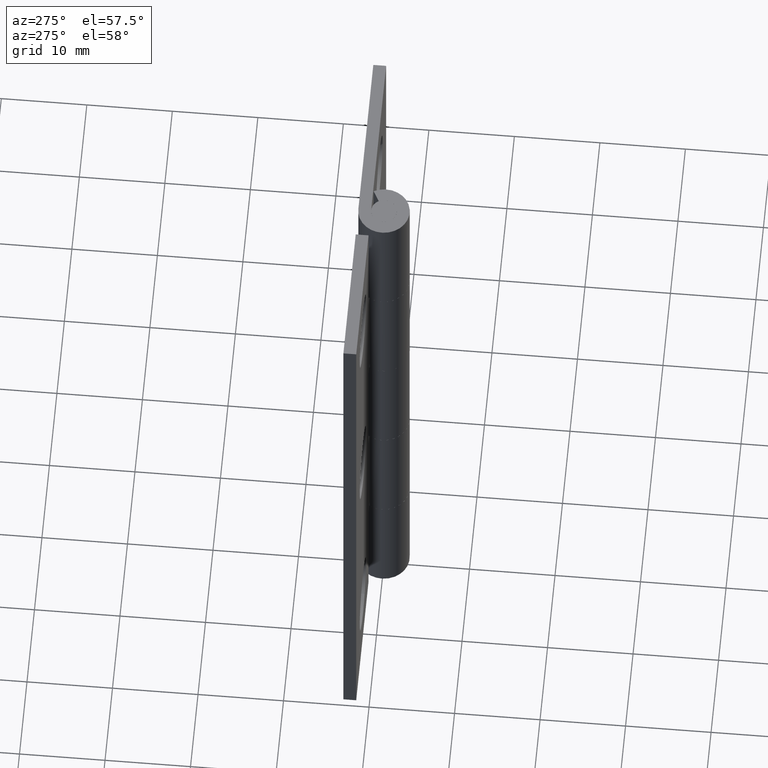
[diagram: clean part render]
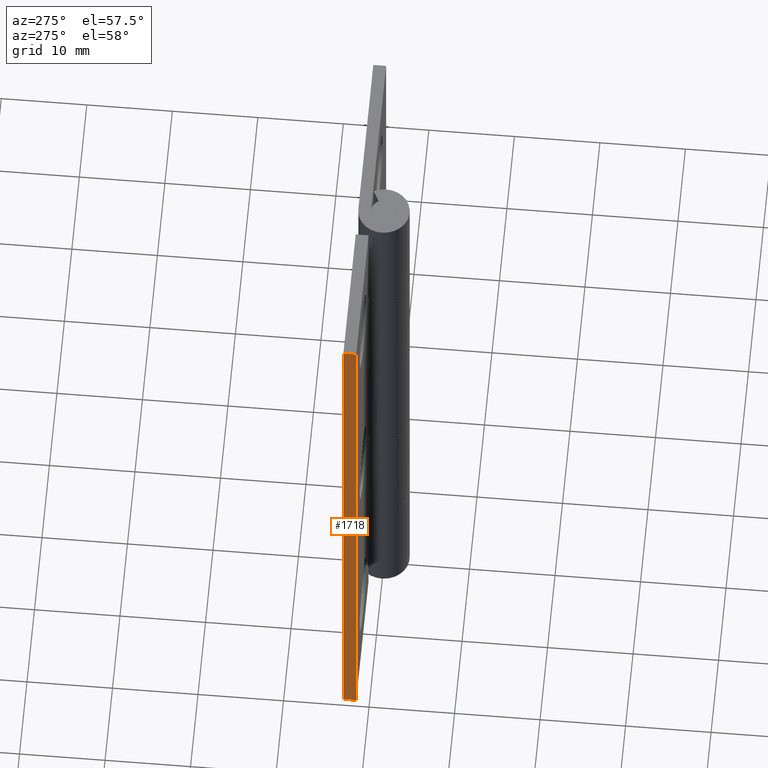
[diagram: same view with one face highlighted and labeled with its STEP entity id]
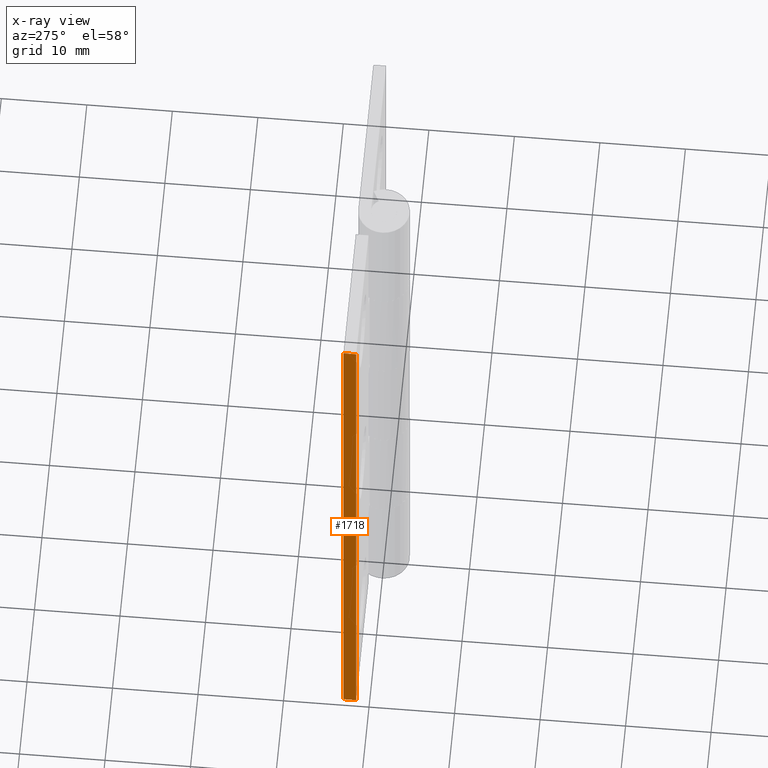
[diagram: x-ray of the same camera — body ghosted, the highlighted face saturated]
A machine part, auxiliary view. The second image highlights one B-rep face of the part: STEP entity #1718.
The next image is the same camera in x-ray: the body ghosted, the highlighted face saturated — about 0% of this face is hidden behind the body in this view.
In plain terms, the highlighted face is a freeform B-spline surface patch.
Its self-contained STEP definition (entity closure, byte-faithful):
#1683=CARTESIAN_POINT('',(-20.0,1.425075002907291,-3.746249854635448));
#1684=CARTESIAN_POINT('',(-20.0,1.425075002907291,78.746251866292212));
#1685=CARTESIAN_POINT('',(-20.0,3.074925037325845,-3.746249854635448));
#1686=CARTESIAN_POINT('',(-20.0,3.074925037325845,78.746251866292212));
#1687=B_SPLINE_SURFACE_WITH_KNOTS('',1,1,((#1683,#1685),(#1684,#1686)),.UNSPECIFIED.,.F.,.F.,.U.,(2,2),(2,2),(0.0,82.492501720927663),(0.041708334948495,0.958291687403247),.UNSPECIFIED.);
#1688=CARTESIAN_POINT('',(-20.0,3.0,75.0));
#1689=VERTEX_POINT('',#1688);
#1690=CARTESIAN_POINT('',(-20.0,1.500000000000000,75.0));
#1691=VERTEX_POINT('',#1690);
#1692=CARTESIAN_POINT('',(-20.0,3.0,75.0));
#1693=CARTESIAN_POINT('',(-20.0,1.500000000000000,75.0));
#1694=QUASI_UNIFORM_CURVE('',1,(#1692,#1693),.UNSPECIFIED.,.F.,.U.);
#1695=EDGE_CURVE('',#1689,#1691,#1694,.T.);
#1696=ORIENTED_EDGE('',*,*,#1695,.F.);
#1697=CARTESIAN_POINT('',(-20.0,3.0,0.0));
#1698=VERTEX_POINT('',#1697);
#1699=CARTESIAN_POINT('',(-20.0,3.0,0.0));
#1700=CARTESIAN_POINT('',(-20.0,3.0,75.0));
#1701=QUASI_UNIFORM_CURVE('',1,(#1699,#1700),.UNSPECIFIED.,.F.,.U.);
#1702=EDGE_CURVE('',#1698,#1689,#1701,.T.);
#1703=ORIENTED_EDGE('',*,*,#1702,.F.);
#1704=CARTESIAN_POINT('',(-20.0,1.500000000000000,0.0));
#1705=VERTEX_POINT('',#1704);
#1706=CARTESIAN_POINT('',(-20.0,3.0,0.0));
#1707=CARTESIAN_POINT('',(-20.0,1.500000000000000,0.0));
#1708=QUASI_UNIFORM_CURVE('',1,(#1706,#1707),.UNSPECIFIED.,.F.,.U.);
#1709=EDGE_CURVE('',#1698,#1705,#1708,.T.);
#1710=ORIENTED_EDGE('',*,*,#1709,.T.);
#1711=CARTESIAN_POINT('',(-20.0,1.500000000000000,0.0));
#1712=CARTESIAN_POINT('',(-20.0,1.500000000000000,75.0));
#1713=QUASI_UNIFORM_CURVE('',1,(#1711,#1712),.UNSPECIFIED.,.F.,.U.);
#1714=EDGE_CURVE('',#1705,#1691,#1713,.T.);
#1715=ORIENTED_EDGE('',*,*,#1714,.T.);
#1716=EDGE_LOOP('',(#1696,#1703,#1710,#1715));
#1717=FACE_OUTER_BOUND('',#1716,.T.);
#1718=ADVANCED_FACE('',(#1717),#1687,.T.);